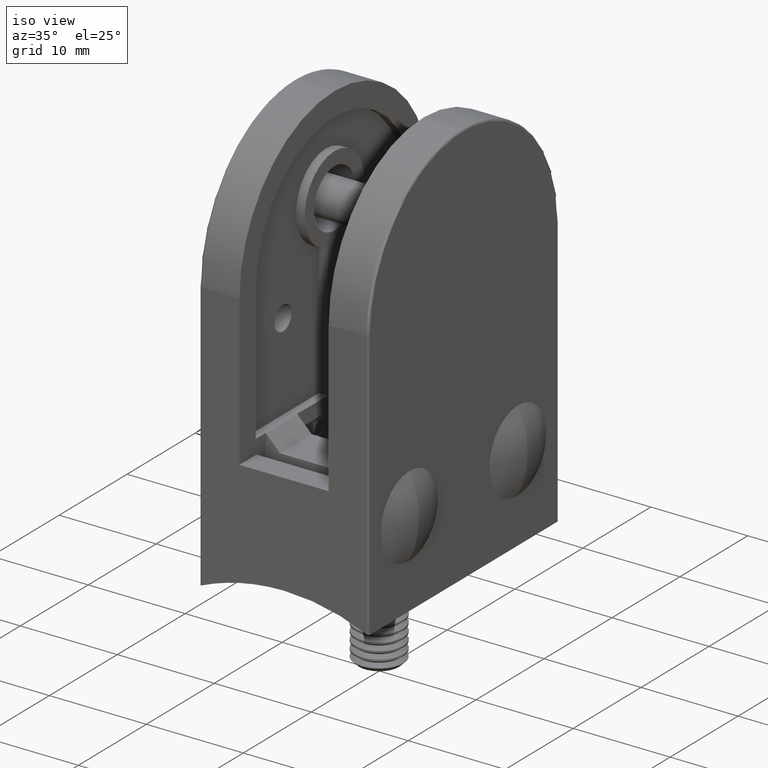
[diagram: clean part render]
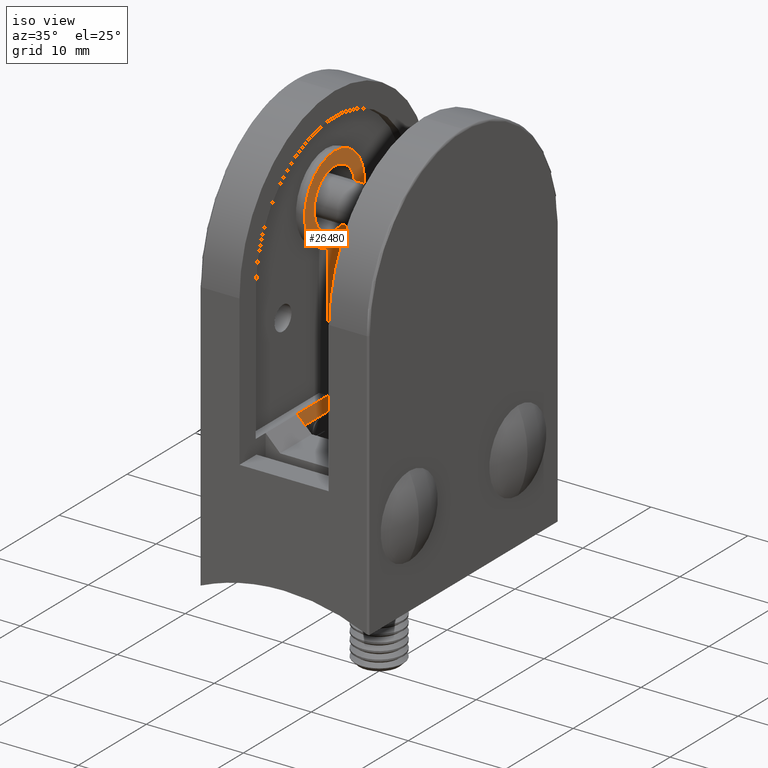
[diagram: same view with one face highlighted and labeled with its STEP entity id]
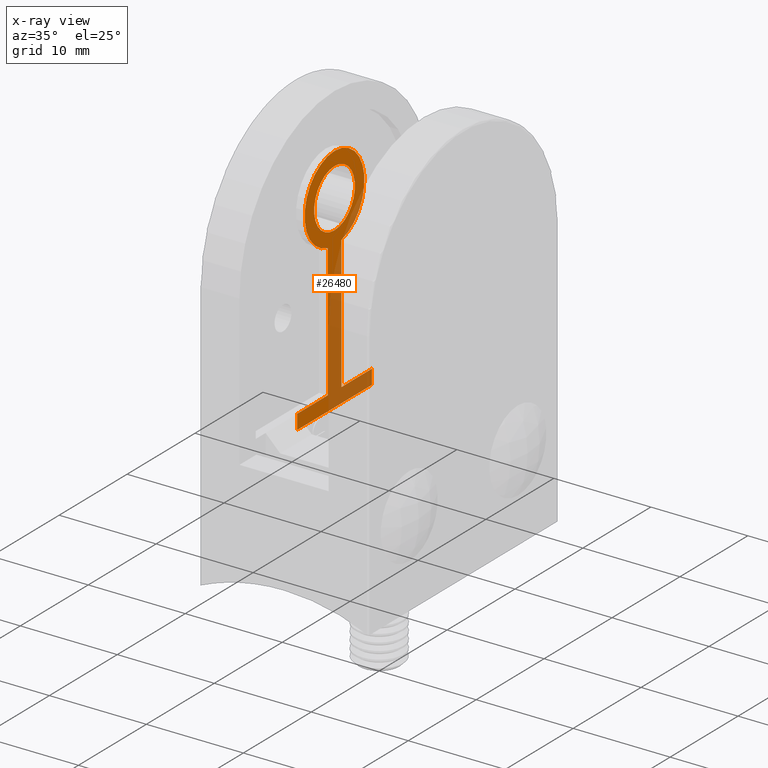
[diagram: x-ray of the same camera — body ghosted, the highlighted face saturated]
A machine part, iso view. The second image highlights one B-rep face of the part: STEP entity #26480.
The next image is the same camera in x-ray: the body ghosted, the highlighted face saturated — about 44% of this face is hidden behind the body in this view.
In plain terms, the highlighted planar face has unit normal (1, 0, 0).
Its self-contained STEP definition (entity closure, byte-faithful):
#100 = LINE ( 'NONE', #20657, #53406 ) ;
#376 = ORIENTED_EDGE ( 'NONE', *, *, #22363, .T. ) ;
#1453 = FACE_OUTER_BOUND ( 'NONE', #20433, .T. ) ;
#1514 = VECTOR ( 'NONE', #8410, 1000.000000000000000 ) ;
#2597 = EDGE_CURVE ( 'NONE', #23517, #4679, #22186, .T. ) ;
#2696 = LINE ( 'NONE', #14313, #33437 ) ;
#2749 = DIRECTION ( 'NONE',  ( 0.0000000000000000000, 0.0000000000000000000, -1.000000000000000000 ) ) ;
#3141 = EDGE_CURVE ( 'NONE', #28947, #31395, #2696, .T. ) ;
#4285 = CARTESIAN_POINT ( 'NONE',  ( 4.099999999999999600, -5.500000000000000900, 10.49999999999999600 ) ) ;
#4679 = VERTEX_POINT ( 'NONE', #25053 ) ;
#5165 = VERTEX_POINT ( 'NONE', #48281 ) ;
#6887 = EDGE_CURVE ( 'NONE', #44142, #27322, #39321, .T. ) ;
#8410 = DIRECTION ( 'NONE',  ( -0.0000000000000000000, 1.000000000000000000, -0.0000000000000000000 ) ) ;
#8787 = CARTESIAN_POINT ( 'NONE',  ( 4.099999999999999600, 11.59999999999999400, 12.00000000000000200 ) ) ;
#9121 = CARTESIAN_POINT ( 'NONE',  ( 4.099999999999999600, 1.000000000000000000, 12.00000000000000200 ) ) ;
#9256 = DIRECTION ( 'NONE',  ( 0.0000000000000000000, -1.000000000000000000, -1.577021341797097600E-016 ) ) ;
#10343 = CARTESIAN_POINT ( 'NONE',  ( 4.099999999999999600, 0.0000000000000000000, 34.39999999999999100 ) ) ;
#10703 = VERTEX_POINT ( 'NONE', #9121 ) ;
#10853 = VERTEX_POINT ( 'NONE', #48805 ) ;
#10901 = ORIENTED_EDGE ( 'NONE', *, *, #34196, .T. ) ;
#11073 = DIRECTION ( 'NONE',  ( 0.0000000000000000000, 0.0000000000000000000, -1.000000000000000000 ) ) ;
#11154 = CIRCLE ( 'NONE', #15402, 3.000000000000006200 ) ;
#11451 = EDGE_CURVE ( 'NONE', #4679, #31395, #100, .T. ) ;
#11945 = ORIENTED_EDGE ( 'NONE', *, *, #46493, .F. ) ;
#12361 = FACE_BOUND ( 'NONE', #15653, .T. ) ;
#14313 = CARTESIAN_POINT ( 'NONE',  ( 4.099999999999999600, -1.000000000000000000, 12.00000000000000200 ) ) ;
#14550 = ORIENTED_EDGE ( 'NONE', *, *, #24246, .F. ) ;
#15402 = AXIS2_PLACEMENT_3D ( 'NONE', #24829, #42217, #11073 ) ;
#15653 = EDGE_LOOP ( 'NONE', ( #14550, #28794 ) ) ;
#15886 = CARTESIAN_POINT ( 'NONE',  ( 4.099999999999999600, -1.000000000000000000, 12.00000000000000200 ) ) ;
#16598 = DIRECTION ( 'NONE',  ( 0.0000000000000000000, 0.0000000000000000000, -1.000000000000000000 ) ) ;
#16610 = CARTESIAN_POINT ( 'NONE',  ( 4.099999999999999600, 5.499999999999999100, 10.49999999999999600 ) ) ;
#18673 = DIRECTION ( 'NONE',  ( -0.0000000000000000000, 1.264823475192494700E-016, 1.000000000000000000 ) ) ;
#20433 = EDGE_LOOP ( 'NONE', ( #11945, #20542, #41681, #376, #31301, #10901, #37069, #55556, #44178 ) ) ;
#20542 = ORIENTED_EDGE ( 'NONE', *, *, #39630, .F. ) ;
#20657 = CARTESIAN_POINT ( 'NONE',  ( 4.099999999999999600, 11.59999999999999400, 12.00000000000000200 ) ) ;
#20750 = CARTESIAN_POINT ( 'NONE',  ( 4.099999999999999600, 5.499999999999999100, 12.00000000000000000 ) ) ;
#20984 = CARTESIAN_POINT ( 'NONE',  ( 4.099999999999999600, 0.0000000000000000000, 29.99999999999999600 ) ) ;
#22033 = CIRCLE ( 'NONE', #53169, 3.000000000000006200 ) ;
#22186 = LINE ( 'NONE', #4285, #30499 ) ;
#22363 = EDGE_CURVE ( 'NONE', #10703, #44142, #42153, .T. ) ;
#22721 = LINE ( 'NONE', #8787, #1514 ) ;
#23517 = VERTEX_POINT ( 'NONE', #44654 ) ;
#24246 = EDGE_CURVE ( 'NONE', #10853, #5165, #22033, .T. ) ;
#24829 = CARTESIAN_POINT ( 'NONE',  ( 4.099999999999999600, 0.0000000000000000000, 29.99999999999999600 ) ) ;
#25053 = CARTESIAN_POINT ( 'NONE',  ( 4.099999999999999600, -5.500000000000001800, 11.99999999999999600 ) ) ;
#26480 = ADVANCED_FACE ( 'NONE', ( #12361, #1453 ), #55770, .T. ) ;
#27322 = VERTEX_POINT ( 'NONE', #10343 ) ;
#27339 = VECTOR ( 'NONE', #9256, 1000.000000000000000 ) ;
#27413 = CARTESIAN_POINT ( 'NONE',  ( 4.099999999999999600, 5.499999999999999100, 10.49999999999999600 ) ) ;
#27868 = CARTESIAN_POINT ( 'NONE',  ( 4.099999999999999600, 1.000000000000000000, 12.00000000000000200 ) ) ;
#28794 = ORIENTED_EDGE ( 'NONE', *, *, #51741, .F. ) ;
#28947 = VERTEX_POINT ( 'NONE', #43200 ) ;
#29943 = CARTESIAN_POINT ( 'NONE',  ( 4.099999999999999600, 5.499999999999999100, 10.50000000000000000 ) ) ;
#29948 = AXIS2_PLACEMENT_3D ( 'NONE', #20984, #51529, #55928 ) ;
#30499 = VECTOR ( 'NONE', #47426, 1000.000000000000000 ) ;
#31301 = ORIENTED_EDGE ( 'NONE', *, *, #6887, .T. ) ;
#31395 = VERTEX_POINT ( 'NONE', #15886 ) ;
#33437 = VECTOR ( 'NONE', #44890, 1000.000000000000000 ) ;
#34009 = CARTESIAN_POINT ( 'NONE',  ( 4.099999999999999600, 0.0000000000000000000, 25.99999999999999600 ) ) ;
#34196 = EDGE_CURVE ( 'NONE', #27322, #28947, #36072, .T. ) ;
#34928 = AXIS2_PLACEMENT_3D ( 'NONE', #34009, #43149, #16598 ) ;
#36072 = CIRCLE ( 'NONE', #56339, 4.400000000000001200 ) ;
#36973 = VECTOR ( 'NONE', #38320, 1000.000000000000000 ) ;
#37069 = ORIENTED_EDGE ( 'NONE', *, *, #3141, .T. ) ;
#37313 = DIRECTION ( 'NONE',  ( 1.000000000000000000, 0.0000000000000000000, 0.0000000000000000000 ) ) ;
#37328 = VERTEX_POINT ( 'NONE', #20750 ) ;
#38320 = DIRECTION ( 'NONE',  ( 0.0000000000000000000, 0.0000000000000000000, -1.000000000000000000 ) ) ;
#38415 = DIRECTION ( 'NONE',  ( -0.0000000000000000000, 1.000000000000000000, -0.0000000000000000000 ) ) ;
#39321 = CIRCLE ( 'NONE', #29948, 4.400000000000001200 ) ;
#39630 = EDGE_CURVE ( 'NONE', #37328, #45246, #51331, .T. ) ;
#41681 = ORIENTED_EDGE ( 'NONE', *, *, #53817, .F. ) ;
#42153 = LINE ( 'NONE', #27868, #44857 ) ;
#42217 = DIRECTION ( 'NONE',  ( 1.000000000000000000, 0.0000000000000000000, 0.0000000000000000000 ) ) ;
#42453 = DIRECTION ( 'NONE',  ( 1.000000000000000000, 0.0000000000000000000, 0.0000000000000000000 ) ) ;
#42462 = CARTESIAN_POINT ( 'NONE',  ( 4.099999999999999600, 1.000000000000001800, 25.71514294287428400 ) ) ;
#43149 = DIRECTION ( 'NONE',  ( 1.000000000000000000, 0.0000000000000000000, 0.0000000000000000000 ) ) ;
#43200 = CARTESIAN_POINT ( 'NONE',  ( 4.099999999999999600, -1.000000000000002700, 25.71514294287428400 ) ) ;
#44142 = VERTEX_POINT ( 'NONE', #42462 ) ;
#44178 = ORIENTED_EDGE ( 'NONE', *, *, #2597, .F. ) ;
#44654 = CARTESIAN_POINT ( 'NONE',  ( 4.099999999999999600, -5.500000000000000900, 10.49999999999999600 ) ) ;
#44857 = VECTOR ( 'NONE', #18673, 1000.000000000000000 ) ;
#44890 = DIRECTION ( 'NONE',  ( 0.0000000000000000000, 1.264823475192494700E-016, -1.000000000000000000 ) ) ;
#45246 = VERTEX_POINT ( 'NONE', #16610 ) ;
#46461 = CARTESIAN_POINT ( 'NONE',  ( 4.099999999999999600, 0.0000000000000000000, 29.99999999999999600 ) ) ;
#46493 = EDGE_CURVE ( 'NONE', #45246, #23517, #48434, .T. ) ;
#47426 = DIRECTION ( 'NONE',  ( 0.0000000000000000000, -2.710505431213761100E-016, 1.000000000000000000 ) ) ;
#48281 = CARTESIAN_POINT ( 'NONE',  ( 4.099999999999999600, 3.673940397442062800E-016, 26.99999999999998900 ) ) ;
#48434 = LINE ( 'NONE', #27413, #27339 ) ;
#48805 = CARTESIAN_POINT ( 'NONE',  ( 4.099999999999999600, 0.0000000000000000000, 33.00000000000000000 ) ) ;
#50293 = DIRECTION ( 'NONE',  ( 0.0000000000000000000, 0.0000000000000000000, -1.000000000000000000 ) ) ;
#51331 = LINE ( 'NONE', #29943, #36973 ) ;
#51529 = DIRECTION ( 'NONE',  ( 1.000000000000000000, 0.0000000000000000000, 0.0000000000000000000 ) ) ;
#51741 = EDGE_CURVE ( 'NONE', #5165, #10853, #11154, .T. ) ;
#53169 = AXIS2_PLACEMENT_3D ( 'NONE', #46461, #37313, #50293 ) ;
#53406 = VECTOR ( 'NONE', #38415, 1000.000000000000000 ) ;
#53817 = EDGE_CURVE ( 'NONE', #10703, #37328, #22721, .T. ) ;
#55074 = CARTESIAN_POINT ( 'NONE',  ( 4.099999999999999600, 0.0000000000000000000, 29.99999999999999600 ) ) ;
#55556 = ORIENTED_EDGE ( 'NONE', *, *, #11451, .F. ) ;
#55770 = PLANE ( 'NONE',  #34928 ) ;
#55928 = DIRECTION ( 'NONE',  ( 0.0000000000000000000, 0.0000000000000000000, -1.000000000000000000 ) ) ;
#56339 = AXIS2_PLACEMENT_3D ( 'NONE', #55074, #42453, #2749 ) ;